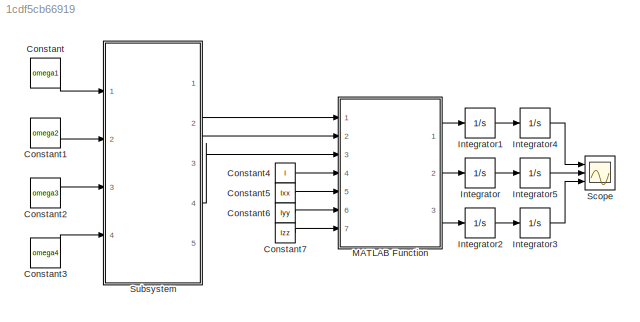
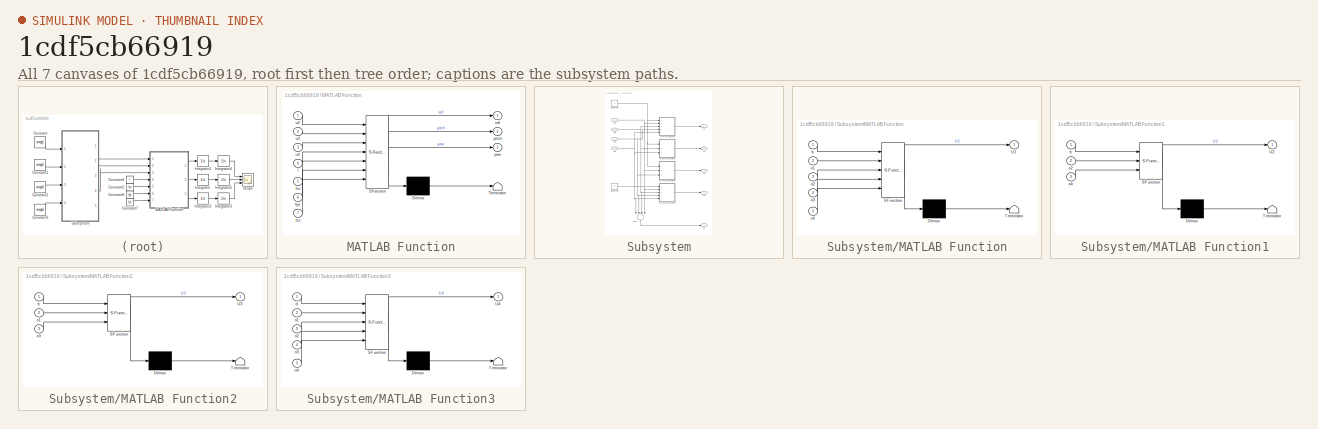
[diagram: thumbnail index - all 7 canvases of the model, root first then tree order]
MODEL slx_1cdf5cb66919
KIND model
CONFIG AbsTol = auto
CONFIG EnableMultiTasking = off
CONFIG FixedStep = auto
CONFIG MaxStep = auto
CONFIG MinStep = auto
CONFIG RelTol = 1e-3
CONFIG SampleTimeConstraint = Unconstrained
CONFIG Solver = VariableStepAuto
CONFIG SolverName = VariableStepAuto
CONFIG StartTime = 0.0
CONFIG StopTime = 10.0
BLOCK [Constant] Constant
  Value = omega1
BLOCK [Constant] Constant1
  Value = omega2
BLOCK [Constant] Constant2
  Value = omega3
BLOCK [Constant] Constant3
  Value = omega4
BLOCK [Constant] Constant4
  Value = l
BLOCK [Constant] Constant5
  Value = Ixx
BLOCK [Constant] Constant6
  Value = Iyy
BLOCK [Constant] Constant7
  Value = Izz
BLOCK [Integrator] Integrator
  Ports = [1, 1]
BLOCK [Integrator] Integrator1
  Ports = [1, 1]
BLOCK [Integrator] Integrator2
  Ports = [1, 1]
BLOCK [Integrator] Integrator3
  Ports = [1, 1]
BLOCK [Integrator] Integrator4
  Ports = [1, 1]
BLOCK [Integrator] Integrator5
  Ports = [1, 1]
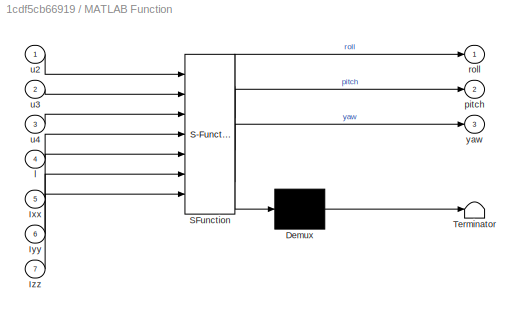
BLOCK [SubSystem] MATLAB Function
  ErrorFcn = Stateflow.Translate.translate
  PermitHierarchicalResolution = ExplicitOnly
  Ports = [7, 3]
  RequestExecContextInheritance = off
  SFBlockType = MATLAB Function
  TreatAsAtomicUnit = on
BLOCK [Demux] MATLAB Function/ Demux 
  Outputs = 1
  Ports = [1, 1]
BLOCK [S-Function] MATLAB Function/ SFunction 
  EnableBusSupport = on
  FunctionName = sf_sfun
  PortCounts = [7 4]
  Ports = [7, 4]
  SFcnIsStateOwnerBlock = off
  SFunctionDeploymentMode = off
  Tag = Stateflow S-Function 5
BLOCK [Terminator] MATLAB Function/ Terminator 
BLOCK [Inport] MATLAB Function/Ixx
  IconDisplay = Port number
  Port = 5
BLOCK [Inport] MATLAB Function/Iyy
  IconDisplay = Port number
  Port = 6
BLOCK [Inport] MATLAB Function/Izz
  IconDisplay = Port number
  Port = 7
BLOCK [Inport] MATLAB Function/l
  IconDisplay = Port number
  Port = 4
BLOCK [Outport] MATLAB Function/pitch
  IconDisplay = Port number
  Port = 2
BLOCK [Outport] MATLAB Function/roll
  IconDisplay = Port number
BLOCK [Inport] MATLAB Function/u2
  IconDisplay = Port number
BLOCK [Inport] MATLAB Function/u3
  IconDisplay = Port number
  Port = 2
BLOCK [Inport] MATLAB Function/u4
  IconDisplay = Port number
  Port = 3
BLOCK [Outport] MATLAB Function/yaw
  IconDisplay = Port number
  Port = 3
BLOCK [Scope] Scope
  Floating = off
  NumInputPorts = 3
  Ports = [3]
  ScopeSpecificationString = Simulink.scopes.TimeScopeBlockCfg('CurrentConfiguration', extmgr.ConfigurationSet(extmgr.Configuration('Core','General UI',true),extmgr.Configuration('Core','Source UI',true),extmgr.Configuration('Sources','WiredSimulink',true),extmgr.Configuration('Visuals','Time Domain',true,'SerializedDisplays',{struct('MinYLimReal','-1.00000','MaxYLimReal','1.00000','YLabelReal','','MinYLimMag','0.00000','MaxY...<+1441ch>
BLOCK [SubSystem] Subsystem
  Ports = [4, 5]
  RequestExecContextInheritance = off
BLOCK [Sum] Subsystem/Add
  InputSameDT = off
  Inputs = -+-+
  OutDataTypeStr = Inherit: Inherit via internal rule
  Ports = [4, 1]
  SaturateOnIntegerOverflow = off
BLOCK [Constant] Subsystem/Constant
  Value = b
BLOCK [Constant] Subsystem/Constant1
  Value = d
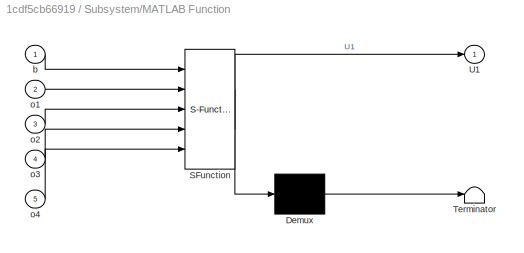
BLOCK [SubSystem] Subsystem/MATLAB Function
  ErrorFcn = Stateflow.Translate.translate
  PermitHierarchicalResolution = ExplicitOnly
  Ports = [5, 1]
  RequestExecContextInheritance = off
  SFBlockType = MATLAB Function
  TreatAsAtomicUnit = on
BLOCK [Demux] Subsystem/MATLAB Function/ Demux 
  Outputs = 1
  Ports = [1, 1]
BLOCK [S-Function] Subsystem/MATLAB Function/ SFunction 
  EnableBusSupport = on
  FunctionName = sf_sfun
  PortCounts = [5 2]
  Ports = [5, 2]
  SFcnIsStateOwnerBlock = off
  SFunctionDeploymentMode = off
  Tag = Stateflow S-Function 2
BLOCK [Terminator] Subsystem/MATLAB Function/ Terminator 
BLOCK [Outport] Subsystem/MATLAB Function/U1
  IconDisplay = Port number
BLOCK [Inport] Subsystem/MATLAB Function/b
  IconDisplay = Port number
BLOCK [Inport] Subsystem/MATLAB Function/o1
  IconDisplay = Port number
  Port = 2
BLOCK [Inport] Subsystem/MATLAB Function/o2
  IconDisplay = Port number
  Port = 3
BLOCK [Inport] Subsystem/MATLAB Function/o3
  IconDisplay = Port number
  Port = 4
BLOCK [Inport] Subsystem/MATLAB Function/o4
  IconDisplay = Port number
  Port = 5
BLOCK [SubSystem] Subsystem/MATLAB Function1
  ErrorFcn = Stateflow.Translate.translate
  PermitHierarchicalResolution = ExplicitOnly
  Ports = [3, 1]
  RequestExecContextInheritance = off
  SFBlockType = MATLAB Function
  TreatAsAtomicUnit = on
BLOCK [Demux] Subsystem/MATLAB Function1/ Demux 
  Outputs = 1
  Ports = [1, 1]
BLOCK [S-Function] Subsystem/MATLAB Function1/ SFunction 
  EnableBusSupport = on
  FunctionName = sf_sfun
  PortCounts = [3 2]
  Ports = [3, 2]
  SFcnIsStateOwnerBlock = off
  SFunctionDeploymentMode = off
  Tag = Stateflow S-Function 1
BLOCK [Terminator] Subsystem/MATLAB Function1/ Terminator 
BLOCK [Outport] Subsystem/MATLAB Function1/U2
  IconDisplay = Port number
BLOCK [Inport] Subsystem/MATLAB Function1/b
  IconDisplay = Port number
BLOCK [Inport] Subsystem/MATLAB Function1/o2
  IconDisplay = Port number
  Port = 2
BLOCK [Inport] Subsystem/MATLAB Function1/o4
  IconDisplay = Port number
  Port = 3
BLOCK [SubSystem] Subsystem/MATLAB Function2
  ErrorFcn = Stateflow.Translate.translate
  PermitHierarchicalResolution = ExplicitOnly
  Ports = [3, 1]
  RequestExecContextInheritance = off
  SFBlockType = MATLAB Function
  TreatAsAtomicUnit = on
BLOCK [Demux] Subsystem/MATLAB Function2/ Demux 
  Outputs = 1
  Ports = [1, 1]
BLOCK [S-Function] Subsystem/MATLAB Function2/ SFunction 
  EnableBusSupport = on
  FunctionName = sf_sfun
  PortCounts = [3 2]
  Ports = [3, 2]
  SFcnIsStateOwnerBlock = off
  SFunctionDeploymentMode = off
  Tag = Stateflow S-Function 3
BLOCK [Terminator] Subsystem/MATLAB Function2/ Terminator 
BLOCK [Outport] Subsystem/MATLAB Function2/U3
  IconDisplay = Port number
BLOCK [Inport] Subsystem/MATLAB Function2/b
  IconDisplay = Port number
BLOCK [Inport] Subsystem/MATLAB Function2/o1
  IconDisplay = Port number
  Port = 2
BLOCK [Inport] Subsystem/MATLAB Function2/o3
  IconDisplay = Port number
  Port = 3
BLOCK [SubSystem] Subsystem/MATLAB Function3
  ErrorFcn = Stateflow.Translate.translate
  PermitHierarchicalResolution = ExplicitOnly
  Ports = [5, 1]
  RequestExecContextInheritance = off
  SFBlockType = MATLAB Function
  TreatAsAtomicUnit = on
BLOCK [Demux] Subsystem/MATLAB Function3/ Demux 
  Outputs = 1
  Ports = [1, 1]
BLOCK [S-Function] Subsystem/MATLAB Function3/ SFunction 
  EnableBusSupport = on
  FunctionName = sf_sfun
  PortCounts = [5 2]
  Ports = [5, 2]
  SFcnIsStateOwnerBlock = off
  SFunctionDeploymentMode = off
  Tag = Stateflow S-Function 4
BLOCK [Terminator] Subsystem/MATLAB Function3/ Terminator 
BLOCK [Outport] Subsystem/MATLAB Function3/U4
  IconDisplay = Port number
BLOCK [Inport] Subsystem/MATLAB Function3/d
  IconDisplay = Port number
BLOCK [Inport] Subsystem/MATLAB Function3/o1
  IconDisplay = Port number
  Port = 2
BLOCK [Inport] Subsystem/MATLAB Function3/o2
  IconDisplay = Port number
  Port = 3
BLOCK [Inport] Subsystem/MATLAB Function3/o3
  IconDisplay = Port number
  Port = 4
BLOCK [Inport] Subsystem/MATLAB Function3/o4
  IconDisplay = Port number
  Port = 5
BLOCK [Outport] Subsystem/U1
  IconDisplay = Port number
BLOCK [Outport] Subsystem/U2
  IconDisplay = Port number
  Port = 2
BLOCK [Outport] Subsystem/U3
  IconDisplay = Port number
  Port = 3
BLOCK [Outport] Subsystem/U4
  IconDisplay = Port number
  Port = 4
BLOCK [Inport] Subsystem/Ω1
  IconDisplay = Port number
BLOCK [Inport] Subsystem/Ω2
  IconDisplay = Port number
  Port = 2
BLOCK [Inport] Subsystem/Ω3
  IconDisplay = Port number
  Port = 3
BLOCK [Inport] Subsystem/Ω4
  IconDisplay = Port number
  Port = 4
BLOCK [Outport] Subsystem/Ωr
  IconDisplay = Port number
  Port = 5
LINE Constant1:1 -> Subsystem:2
LINE Constant2:1 -> Subsystem:3
LINE Constant3:1 -> Subsystem:4
LINE Constant4:1 -> MATLAB Function:4
LINE Constant5:1 -> MATLAB Function:5
LINE Constant6:1 -> MATLAB Function:6
LINE Constant7:1 -> MATLAB Function:7
LINE Constant:1 -> Subsystem:1
LINE Integrator1:1 -> Integrator4:1
LINE Integrator2:1 -> Integrator3:1
LINE Integrator3:1 -> Scope:3
LINE Integrator4:1 -> Scope:1
LINE Integrator5:1 -> Scope:2
LINE Integrator:1 -> Integrator5:1
LINE MATLAB Function:1 -> Integrator1:1
LINE MATLAB Function:2 -> Integrator:1
LINE MATLAB Function:3 -> Integrator2:1
LINE Subsystem/Add:1 -> Subsystem/Ωr:1
LINE Subsystem/Constant1:1 -> Subsystem/MATLAB Function3:1
NET Subsystem/Constant:1 -> Subsystem/MATLAB Function1:1, Subsystem/MATLAB Function2:1, Subsystem/MATLAB Function:1
LINE Subsystem/MATLAB Function1:1 -> Subsystem/U2:1
LINE Subsystem/MATLAB Function2:1 -> Subsystem/U3:1
LINE Subsystem/MATLAB Function3:1 -> Subsystem/U4:1
LINE Subsystem/MATLAB Function:1 -> Subsystem/U1:1
NET Subsystem/Ω1:1 -> Subsystem/Add:4, Subsystem/MATLAB Function2:2, Subsystem/MATLAB Function3:2, Subsystem/MATLAB Function:2
NET Subsystem/Ω2:1 -> Subsystem/Add:3, Subsystem/MATLAB Function1:2, Subsystem/MATLAB Function3:3, Subsystem/MATLAB Function:3
NET Subsystem/Ω3:1 -> Subsystem/Add:2, Subsystem/MATLAB Function2:3, Subsystem/MATLAB Function3:4, Subsystem/MATLAB Function:4
NET Subsystem/Ω4:1 -> Subsystem/Add:1, Subsystem/MATLAB Function1:3, Subsystem/MATLAB Function3:5, Subsystem/MATLAB Function:5
LINE Subsystem:2 -> MATLAB Function:1
LINE Subsystem:3 -> MATLAB Function:2
LINE Subsystem:4 -> MATLAB Function:3
note: NET lines group one-source signal fan-out (src -> all destinations, sorted); 1:1 wires keep LINE
CHART Subsystem/MATLAB Function1 states=1 transitions=1
  STATE_LABEL 'eML_blk_kernel()'
  STATE_LABEL 'SCRIPT:\nfunction U2 = fcn(b, o2, o4)\n\nU2 = b*(-o2^2+o4^2);\n'
CHART Subsystem/MATLAB Function states=1 transitions=1
  STATE_LABEL 'eML_blk_kernel()'
  STATE_LABEL 'SCRIPT:\nfunction U1 = fcn(b, o1, o2, o3, o4)\n\nU1 = b*(o1^2+o2^2+o3^2+o4^2);\n'
CHART Subsystem/MATLAB Function2 states=1 transitions=1
  STATE_LABEL 'eML_blk_kernel()'
  STATE_LABEL 'SCRIPT:\nfunction U3 = fcn(b, o1, o3)\n\nU3 = b*(o1^2-o3^2);\n'
CHART Subsystem/MATLAB Function3 states=1 transitions=1
  STATE_LABEL 'eML_blk_kernel()'
  STATE_LABEL 'SCRIPT:\nfunction U4 = fcn(d, o1, o2, o3, o4)\n\nU4 = d*(o1^2-o2^2+o3^2-o4^2);\n'
CHART MATLAB Function states=1 transitions=1
  STATE_LABEL 'eML_blk_kernel()'
  STATE_LABEL 'SCRIPT:\nfunction [roll,pitch,yaw]= fcn(u2, u3, u4, l, Ixx, Iyy, Izz)\n\nroll = l*(u2/Ixx);\npitch = l*(u3/Iyy);\nyaw = l*(u4/Izz);\n'
